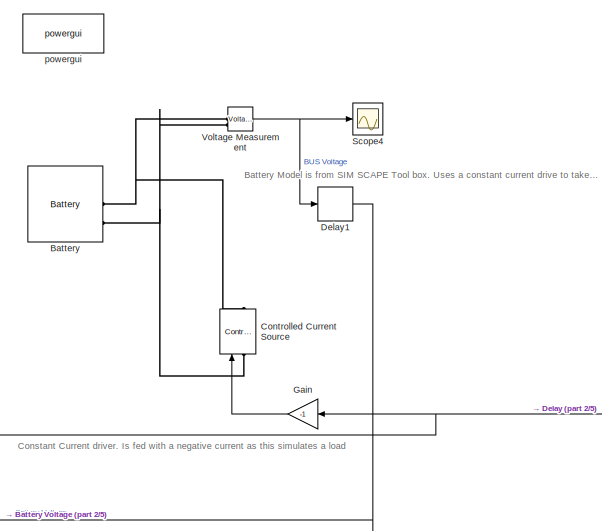
[diagram: root canvas - part 1/5, top center region]
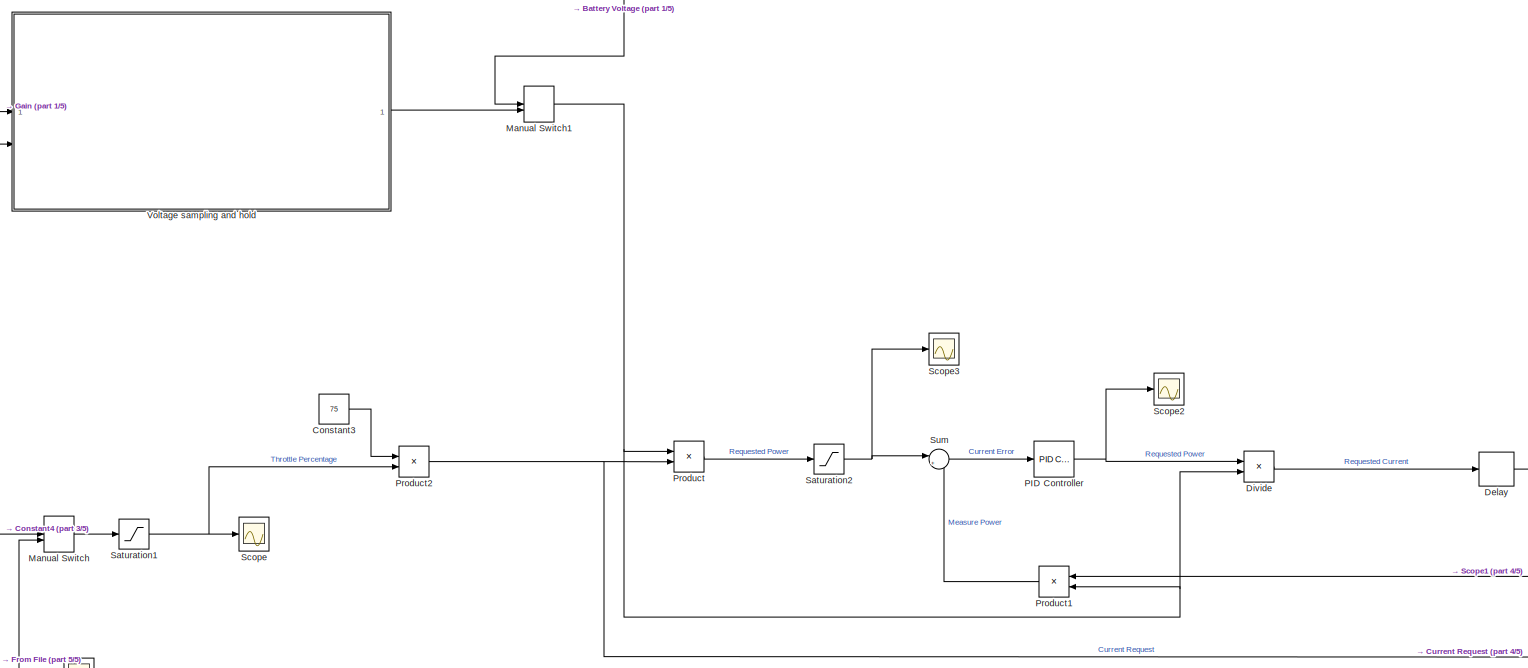
[diagram: root canvas - part 2/5, bottom center region]
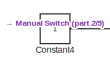
[diagram: root canvas - part 3/5, bottom left region]
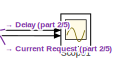
[diagram: root canvas - part 4/5, bottom right region]
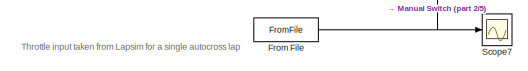
[diagram: root canvas - part 5/5, bottom left region]
MODEL slx_3a75ea7738c5
KIND model
CONFIG AbsTol = auto
CONFIG EnableMultiTasking = off
CONFIG FixedStep = auto
CONFIG MaxStep = auto
CONFIG MinStep = auto
CONFIG RelTol = 1e-3
CONFIG SampleTimeConstraint = Unconstrained
CONFIG SolverName = VariableStepAuto
CONFIG StartTime = 0.0
CONFIG StopTime = 94.7
BLOCK [Reference] Battery  REF=spsBatteryLib/Battery
  LibrarySourceBlock = sps_lib/Sources/Battery
  SourceBlock = spsBatteryLib/Battery
  SourceType = Battery
BLOCK [Constant] Constant3
  Value = 75
BLOCK [Constant] Constant4
BLOCK [Reference] Controlled Current Source  REF=spsControlledCurrentSourceLib/Controlled Current Source
  LibrarySourceBlock = sps_lib/Sources/Controlled Current Source
  SourceBlock = spsControlledCurrentSourceLib/Controlled Current Source
  SourceType = Controlled Current Source
BLOCK [Delay] Delay
  DelayLength = 1
  InitialCondition = 1
  InputPortMap = u0
BLOCK [Delay] Delay1
  DelayLength = 1
  InitialCondition = 600
  InputPortMap = u0
BLOCK [Product] Divide
  Inputs = */
BLOCK [FromFile] From File
  FileName = data.mat
  SampleTime = 0
BLOCK [Gain] Gain
  Gain = -1
BLOCK [ManualSwitch] Manual Switch
  CurrentSetting = 0
BLOCK [ManualSwitch] Manual Switch1
  CurrentSetting = 0
BLOCK [Reference] PID Controller  REF=slpidlib/PID Controller
  LibrarySourceBlock = simulink/Continuous/PID Controller
  SourceBlock = slpidlib/PID Controller
  SourceType = PID 1dof
BLOCK [Product] Product
BLOCK [Product] Product1
BLOCK [Product] Product2
BLOCK [Saturate] Saturation1
  LowerLimit = 0
  UpperLimit = inf
BLOCK [Saturate] Saturation2
  LowerLimit = 0
  UpperLimit = 40000
BLOCK [Scope] Scope
  Floating = off
  NumInputPorts = 1
  ScopeSpecificationString = Simulink.scopes.TimeScopeBlockCfg('CurrentConfiguration', extmgr.ConfigurationSet(extmgr.Configuration('Core','General UI',true),extmgr.Configuration('Core','Source UI',true),extmgr.Configuration('Sources','WiredSimulink',true),extmgr.Configuration('Visuals','Time Domain',true,'SerializedDisplays',{struct('MinYLimReal','-0.12499','MaxYLimReal','1.12491','YLabelReal','','MinYLimMag','0.00000','MaxY...<+1496ch>
BLOCK [Scope] Scope1
  Floating = off
  NumInputPorts = 2
  ScopeSpecificationString = Simulink.scopes.TimeScopeBlockCfg('CurrentConfiguration', extmgr.ConfigurationSet(extmgr.Configuration('Core','General UI',true),extmgr.Configuration('Core','Source UI',true),extmgr.Configuration('Sources','WiredSimulink',true,'DataLoggingVariableName','ScopeData1'),extmgr.Configuration('Visuals','Time Domain',true,'SerializedDisplays',{struct('MinYLimReal','-44.17083','MaxYLimReal','111.8744','YL...<+1477ch>
BLOCK [Scope] Scope2
  Floating = off
  NumInputPorts = 1
  ScopeSpecificationString = Simulink.scopes.TimeScopeBlockCfg('CurrentConfiguration', extmgr.ConfigurationSet(extmgr.Configuration('Core','General UI',true),extmgr.Configuration('Core','Source UI',true),extmgr.Configuration('Sources','WiredSimulink',true,'DataLoggingVariableName','ScopeData2'),extmgr.Configuration('Visuals','Time Domain',true,'SerializedDisplays',{struct('MinYLimReal','-26274.5006','MaxYLimReal','66552.68619...<+1491ch>
BLOCK [Scope] Scope3
  Floating = off
  NumInputPorts = 1
  ScopeSpecificationString = Simulink.scopes.TimeScopeBlockCfg('CurrentConfiguration', extmgr.ConfigurationSet(extmgr.Configuration('Core','General UI',true),extmgr.Configuration('Core','Source UI',true),extmgr.Configuration('Sources','WiredSimulink',true,'DataLoggingVariableName','ScopeData3'),extmgr.Configuration('Visuals','Time Domain',true,'SerializedDisplays',{struct('MinYLimReal','-5000.00000','MaxYLimReal','45000.00000...<+1510ch>
BLOCK [Scope] Scope4
  Floating = off
  NumInputPorts = 1
  ScopeSpecificationString = Simulink.scopes.TimeScopeBlockCfg('CurrentConfiguration', extmgr.ConfigurationSet(extmgr.Configuration('Core','General UI',true),extmgr.Configuration('Core','Source UI',true),extmgr.Configuration('Sources','WiredSimulink',true,'DataLoggingVariableName','ScopeData1'),extmgr.Configuration('Visuals','Time Domain',true,'SerializedDisplays',{struct('MinYLimReal','593.71212','MaxYLimReal','595.79771','Y...<+1506ch>
BLOCK [Scope] Scope7
  Floating = off
  NumInputPorts = 1
  ScopeSpecificationString = Simulink.scopes.TimeScopeBlockCfg('CurrentConfiguration', extmgr.ConfigurationSet(extmgr.Configuration('Core','General UI',true),extmgr.Configuration('Core','Source UI',true),extmgr.Configuration('Sources','WiredSimulink',true,'DataLoggingVariableName','ScopeData1'),extmgr.Configuration('Visuals','Time Domain',true,'SerializedDisplays',{struct('MinYLimReal','-0.125','MaxYLimReal','1.125','YLabelRe...<+1445ch>
BLOCK [Sum] Sum
  Inputs = |+-
BLOCK [Reference] Voltage Measurement  REF=spsVoltageMeasurementLib/Voltage Measurement
  LibrarySourceBlock = sps_lib/Sensors and Measurements/Voltage Measurement
  SourceBlock = spsVoltageMeasurementLib/Voltage Measurement
  SourceType = Voltage Measurement
  UserDataPersistent = on
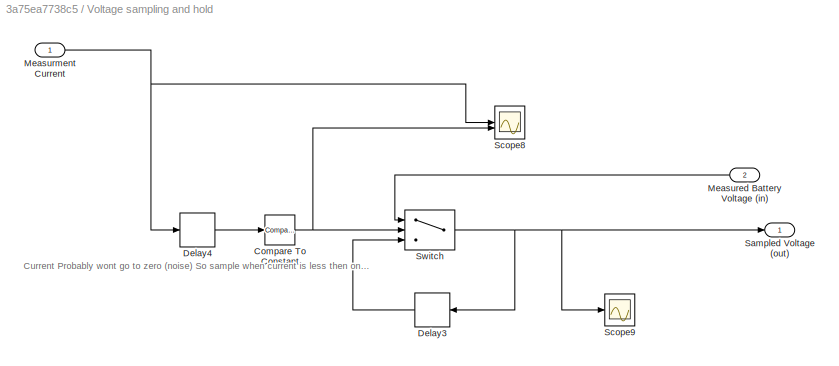
BLOCK [SubSystem] Voltage sampling  and hold
BLOCK [Reference] Voltage sampling  and hold/Compare To Constant  REF=simulink/Logic and Bit
Operations/Compare
To Constant
  SourceBlock = simulink/Logic and Bit\nOperations/Compare\nTo Constant
  SourceType = Compare To Constant
BLOCK [Delay] Voltage sampling  and hold/Delay3
  DelayLength = 1
  InitialCondition = 500
  InputPortMap = u0
BLOCK [Delay] Voltage sampling  and hold/Delay4
  DelayLength = 1
  InitialCondition = 0
  InputPortMap = u0
BLOCK [Inport] Voltage sampling  and hold/Measured Battery Voltage (in)
  Port = 2
BLOCK [Inport] Voltage sampling  and hold/Measurment Current
BLOCK [Outport] Voltage sampling  and hold/Sampled Voltage (out)
BLOCK [Scope] Voltage sampling  and hold/Scope8
  Floating = off
  NumInputPorts = 2
  ScopeSpecificationString = Simulink.scopes.TimeScopeBlockCfg('CurrentConfiguration', extmgr.ConfigurationSet(extmgr.Configuration('Core','General UI',true),extmgr.Configuration('Core','Source UI',true),extmgr.Configuration('Sources','WiredSimulink',true,'DataLoggingVariableName','ScopeData1'),extmgr.Configuration('Visuals','Time Domain',true,'SerializedDisplays',{struct('MinYLimReal','-10.24431','MaxYLimReal','77.5328','YLa...<+1489ch>
BLOCK [Scope] Voltage sampling  and hold/Scope9
  Floating = off
  NumInputPorts = 1
  ScopeSpecificationString = Simulink.scopes.TimeScopeBlockCfg('CurrentConfiguration', extmgr.ConfigurationSet(extmgr.Configuration('Core','General UI',true),extmgr.Configuration('Core','Source UI',true),extmgr.Configuration('Sources','WiredSimulink',true,'DataLoggingVariableName','ScopeData2'),extmgr.Configuration('Visuals','Time Domain',true,'SerializedDisplays',{struct('MinYLimReal','593.52019','MaxYLimReal','600.71998','Y...<+1468ch>
BLOCK [Switch] Voltage sampling  and hold/Switch
  Criteria = u2 > Threshold
  InputSameDT = off
  SaturateOnIntegerOverflow = off
BLOCK [Reference] powergui  REF=spspowerguiLib/powergui
  LibrarySourceBlock = sps_lib/powergui
  Priority = 1
  SourceBlock = spspowerguiLib/powergui
  SourceType = PSB option menu block
ANNOTATION (root): Battery Model is from SIM SCAPE Tool box. Uses a constant current drive to take the current request from controller and apply load to the battery. Delay block is nescarry so as to have an intial value for the model to use in calculations.
ANNOTATION (root): Throttle input taken from Lapsim for a single autocross lap
ANNOTATION (root): Constant Current driver. Is fed with a negative current as this simulates a load
ANNOTATION Voltage sampling  and hold: Current Probably wont go to zero (noise) So sample when current is less then one amp
LINE Constant3:1 -> Product2:1
LINE Constant4:1 -> Manual Switch:1
NET Delay1:1 -> Manual Switch1:1, Voltage sampling  and hold:2
NET Delay:1 -> Gain:1, Product1:1, Scope1:1, Voltage sampling  and hold:1
LINE Divide:1 -> Delay:1
NET From File:1 -> Manual Switch:2, Scope7:1
LINE Gain:1 -> Controlled Current Source:1
NET Manual Switch1:1 -> Divide:2, Product1:2, Product:1
LINE Manual Switch:1 -> Saturation1:1
NET PID Controller:1 -> Divide:1, Scope2:1
LINE Product1:1 -> Sum:2
NET Product2:1 -> Product:2, Scope1:2
LINE Product:1 -> Saturation2:1
NET Saturation1:1 -> Product2:2, Scope:1
NET Saturation2:1 -> Scope3:1, Sum:1
LINE Sum:1 -> PID Controller:1
NET Voltage Measurement:1 -> Delay1:1, Scope4:1
NET Voltage sampling  and hold/Compare To Constant:1 -> Voltage sampling  and hold/Scope8:2, Voltage sampling  and hold/Switch:2
LINE Voltage sampling  and hold/Delay3:1 -> Voltage sampling  and hold/Switch:3
LINE Voltage sampling  and hold/Delay4:1 -> Voltage sampling  and hold/Compare To Constant:1
LINE Voltage sampling  and hold/Measured Battery Voltage (in):1 -> Voltage sampling  and hold/Switch:1
NET Voltage sampling  and hold/Measurment Current:1 -> Voltage sampling  and hold/Delay4:1, Voltage sampling  and hold/Scope8:1
NET Voltage sampling  and hold/Switch:1 -> Voltage sampling  and hold/Delay3:1, Voltage sampling  and hold/Sampled Voltage (out):1, Voltage sampling  and hold/Scope9:1
LINE Voltage sampling  and hold:1 -> Manual Switch1:2
PNET net1: Battery:LConn1 -- Controlled Current Source:RConn1 -- Voltage Measurement:LConn1
PNET net2: Battery:LConn2 -- Controlled Current Source:LConn1 -- Voltage Measurement:LConn2
note: NET lines group one-source signal fan-out (src -> all destinations, sorted); 1:1 wires keep LINE; PNET lines group multi-terminal physical nets as a canonical sorted terminal list (undirected conserving connections); 2-terminal nets keep the pairwise PLINE form
